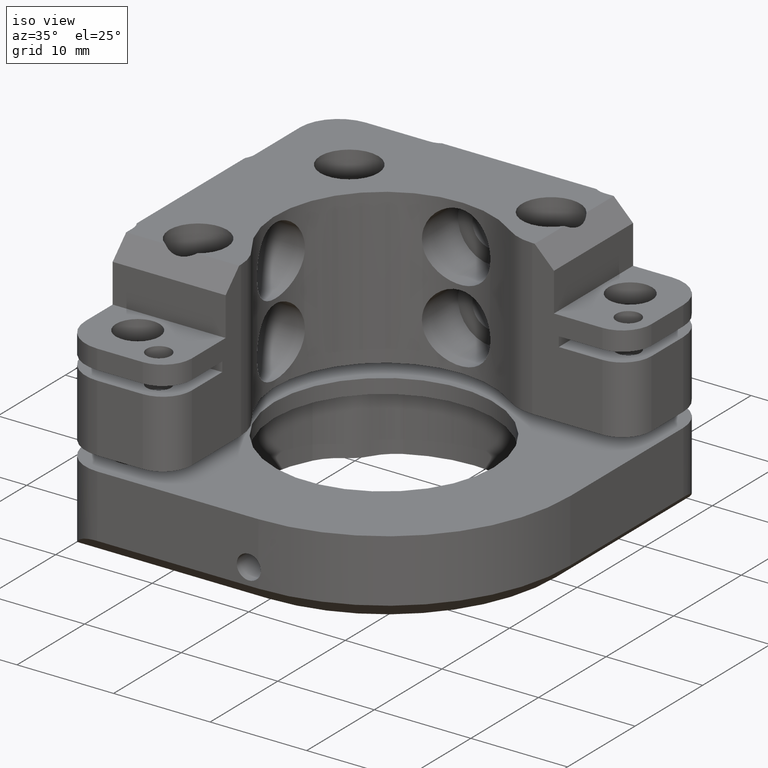
[diagram: clean part render]
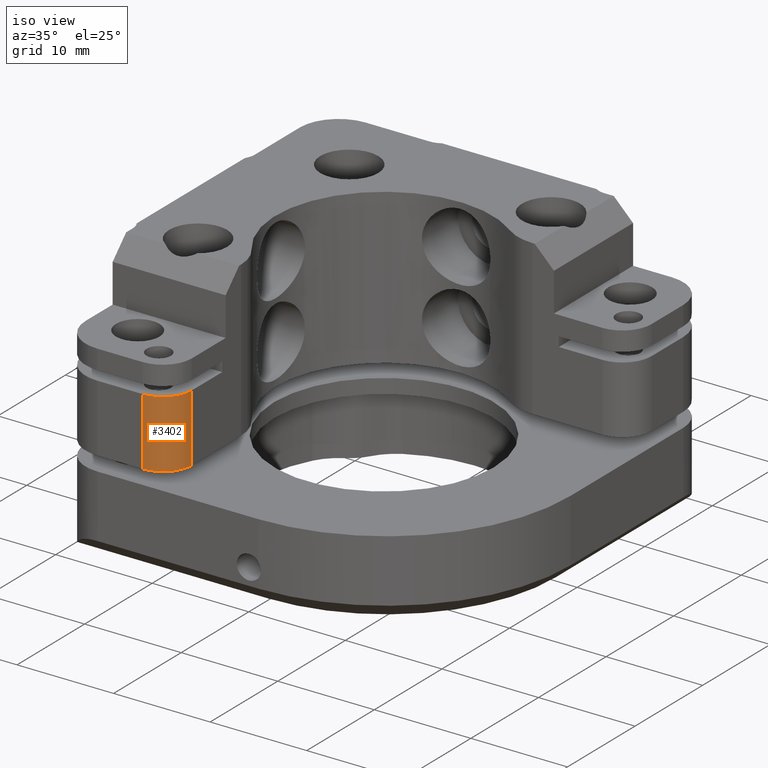
[diagram: same view with one face highlighted and labeled with its STEP entity id]
A machine part, iso view. The second image highlights one B-rep face of the part: STEP entity #3402.
In plain terms, the highlighted cylindrical surface (edge-blend (fillet) strip) has radius 3 mm, axis along (0, 0, 1).
Its self-contained STEP definition (entity closure, byte-faithful):
#86 = DIRECTION ( 'NONE',  ( 0.000000000000000000, 0.000000000000000000, 1.000000000000000000 ) ) ;
#388 = AXIS2_PLACEMENT_3D ( 'NONE', #2720, #742, #3460 ) ;
#487 = CIRCLE ( 'NONE', #4463, 2.999999999999999112 ) ;
#742 = DIRECTION ( 'NONE',  ( 0.000000000000000000, 0.000000000000000000, 1.000000000000000000 ) ) ;
#746 = DIRECTION ( 'NONE',  ( -0.000000000000000000, -0.000000000000000000, -1.000000000000000000 ) ) ;
#827 = CYLINDRICAL_SURFACE ( 'NONE', #388, 2.999999999999999112 ) ;
#836 = CARTESIAN_POINT ( 'NONE',  ( -7.999999999999888978, -17.00000000000000000, 9.500000000000000000 ) ) ;
#845 = ORIENTED_EDGE ( 'NONE', *, *, #888, .F. ) ;
#888 = EDGE_CURVE ( 'NONE', #1665, #3285, #2148, .T. ) ;
#1195 = CARTESIAN_POINT ( 'NONE',  ( -11.00000000000000000, -17.00000000000000000, 9.500000000000000000 ) ) ;
#1586 = VERTEX_POINT ( 'NONE', #3953 ) ;
#1665 = VERTEX_POINT ( 'NONE', #3193 ) ;
#1731 = DIRECTION ( 'NONE',  ( -0.000000000000000000, 0.000000000000000000, 1.000000000000000000 ) ) ;
#1764 = CARTESIAN_POINT ( 'NONE',  ( -11.00000000000000000, -17.00000000000000000, 16.50000000000000000 ) ) ;
#1938 = LINE ( 'NONE', #3430, #3256 ) ;
#1966 = FACE_OUTER_BOUND ( 'NONE', #2505, .T. ) ;
#2148 = LINE ( 'NONE', #4707, #2279 ) ;
#2279 = VECTOR ( 'NONE', #1731, 1000.000000000000000 ) ;
#2485 = ORIENTED_EDGE ( 'NONE', *, *, #3042, .F. ) ;
#2505 = EDGE_LOOP ( 'NONE', ( #845, #2485, #4066, #4602 ) ) ;
#2573 = DIRECTION ( 'NONE',  ( -0.000000000000000000, -0.000000000000000000, -1.000000000000000000 ) ) ;
#2706 = AXIS2_PLACEMENT_3D ( 'NONE', #1195, #746, #4174 ) ;
#2720 = CARTESIAN_POINT ( 'NONE',  ( -11.00000000000000000, -17.00000000000000000, 9.500000000000000000 ) ) ;
#2861 = EDGE_CURVE ( 'NONE', #1586, #3285, #487, .T. ) ;
#2951 = VERTEX_POINT ( 'NONE', #836 ) ;
#3042 = EDGE_CURVE ( 'NONE', #2951, #1665, #3338, .T. ) ;
#3193 = CARTESIAN_POINT ( 'NONE',  ( -11.00000000000000000, -20.00000000000000000, 9.500000000000000000 ) ) ;
#3195 = CARTESIAN_POINT ( 'NONE',  ( -11.00000000000000000, -20.00000000000000000, 16.50000000000000000 ) ) ;
#3256 = VECTOR ( 'NONE', #86, 1000.000000000000000 ) ;
#3285 = VERTEX_POINT ( 'NONE', #3195 ) ;
#3338 = CIRCLE ( 'NONE', #2706, 2.999999999999999112 ) ;
#3402 = ADVANCED_FACE ( 'NONE', ( #1966 ), #827, .T. ) ;
#3430 = CARTESIAN_POINT ( 'NONE',  ( -8.000000000000000000, -17.00000000000000000, 9.500000000000000000 ) ) ;
#3460 = DIRECTION ( 'NONE',  ( 1.000000000000000000, 0.000000000000000000, 0.000000000000000000 ) ) ;
#3676 = DIRECTION ( 'NONE',  ( 1.000000000000000000, -1.503427012513233341E-14, 0.000000000000000000 ) ) ;
#3721 = EDGE_CURVE ( 'NONE', #2951, #1586, #1938, .T. ) ;
#3953 = CARTESIAN_POINT ( 'NONE',  ( -8.000000000000000000, -17.00000000000004619, 16.50000000000000000 ) ) ;
#4066 = ORIENTED_EDGE ( 'NONE', *, *, #3721, .T. ) ;
#4174 = DIRECTION ( 'NONE',  ( 1.000000000000000000, 0.000000000000000000, 0.000000000000000000 ) ) ;
#4463 = AXIS2_PLACEMENT_3D ( 'NONE', #1764, #2573, #3676 ) ;
#4602 = ORIENTED_EDGE ( 'NONE', *, *, #2861, .T. ) ;
#4707 = CARTESIAN_POINT ( 'NONE',  ( -11.00000000000000000, -20.00000000000000000, 9.500000000000000000 ) ) ;